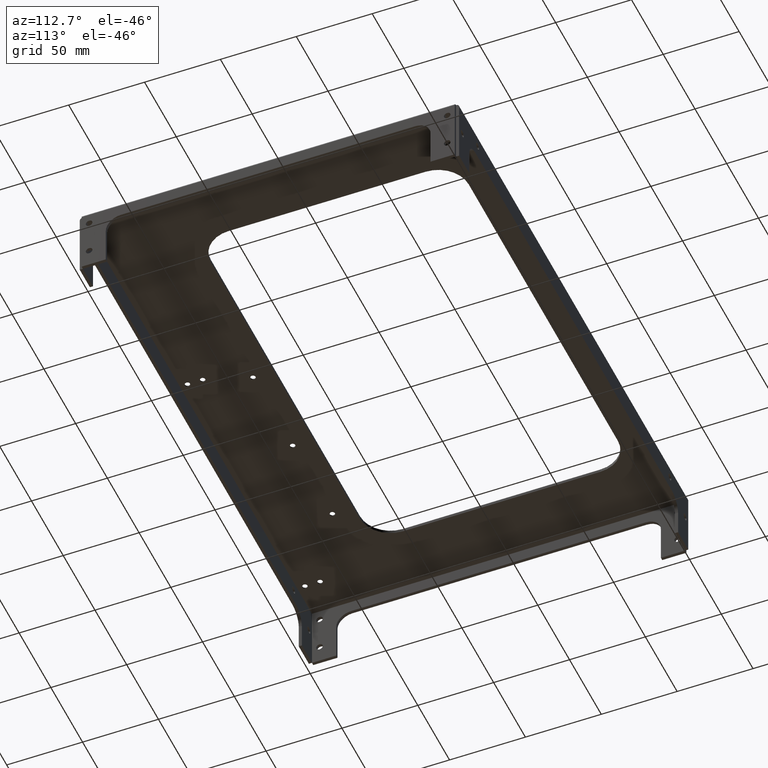
[diagram: clean part render]
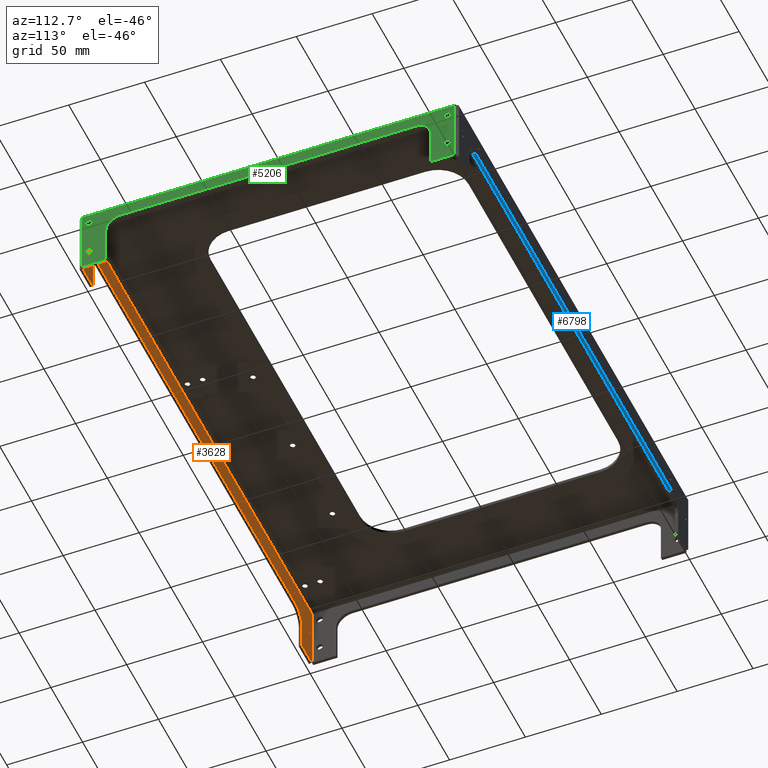
[diagram: same view with three faces highlighted in distinct colors, each labeled with its STEP entity id]
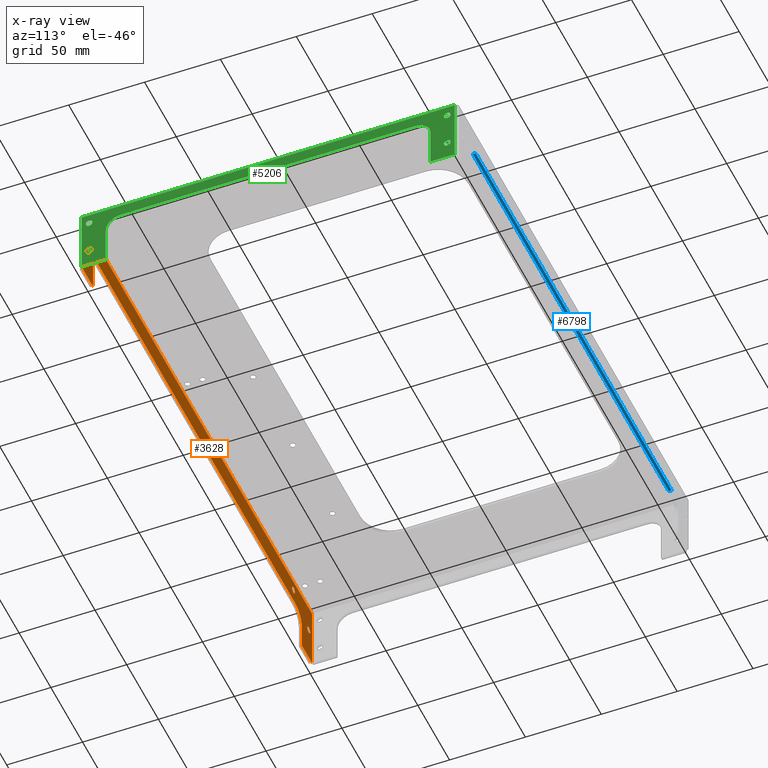
[diagram: x-ray of the same camera — body ghosted, the three highlighted faces saturated]
A machine part, auxiliary view with three faces highlighted in distinct colors.
The next image is the same camera in x-ray (body ghosted, the three faces saturated) — at least one of them is partly hidden behind the body in this view.
Their STEP definitions:

[orange] entity #3628 — the highlighted planar face has unit normal (0, 1, 0).
#850 = PLANE('',#851);
#851 = AXIS2_PLACEMENT_3D('',#852,#853,#854);
#852 = CARTESIAN_POINT('',(0.,0.,0.));
#853 = DIRECTION('',(0.,0.,-1.));
#854 = DIRECTION('',(-1.,0.,0.));
#1299 = VERTEX_POINT('',#1300);
#1300 = CARTESIAN_POINT('',(362.968,2.032,0.));
#1335 = PLANE('',#1336);
#1336 = AXIS2_PLACEMENT_3D('',#1337,#1338,#1339);
#1337 = CARTESIAN_POINT('',(362.968,0.,0.));
#1338 = DIRECTION('',(1.,0.,0.));
#1339 = DIRECTION('',(0.,1.,0.));
#1448 = PLANE('',#1449);
#1449 = AXIS2_PLACEMENT_3D('',#1450,#1451,#1452);
#1450 = CARTESIAN_POINT('',(365.,2.032,0.));
#1451 = DIRECTION('',(0.,1.,0.));
#1452 = DIRECTION('',(-1.,0.,0.));
#1513 = VERTEX_POINT('',#1514);
#1514 = CARTESIAN_POINT('',(2.032,2.032,0.));
#1549 = PLANE('',#1550);
#1550 = AXIS2_PLACEMENT_3D('',#1551,#1552,#1553);
#1551 = CARTESIAN_POINT('',(2.032,2.032,0.));
#1552 = DIRECTION('',(-1.,-0.,-0.));
#1553 = DIRECTION('',(0.,-1.,0.));
#1658 = PLANE('',#1659);
#1659 = AXIS2_PLACEMENT_3D('',#1660,#1661,#1662);
#1660 = CARTESIAN_POINT('',(2.032,2.032,0.));
#1661 = DIRECTION('',(0.,1.,0.));
#1662 = DIRECTION('',(-1.,0.,0.));
#2478 = EDGE_CURVE('',#1299,#1513,#2479,.T.);
#2479 = SURFACE_CURVE('',#2480,(#2484,#2491),.PCURVE_S1.);
#2480 = LINE('',#2481,#2482);
#2481 = CARTESIAN_POINT('',(362.968,2.032,0.));
#2482 = VECTOR('',#2483,1.);
#2483 = DIRECTION('',(-1.,0.,0.));
#2484 = PCURVE('',#850,#2485);
#2485 = DEFINITIONAL_REPRESENTATION('',(#2486),#2490);
#2486 = LINE('',#2487,#2488);
#2487 = CARTESIAN_POINT('',(-362.968,2.032));
#2488 = VECTOR('',#2489,1.);
#2489 = DIRECTION('',(1.,0.));
#2490 = ( GEOMETRIC_REPRESENTATION_CONTEXT(2) 
PARAMETRIC_REPRESENTATION_CONTEXT() REPRESENTATION_CONTEXT('2D SPACE',''
  ) );
#2491 = PCURVE('',#2492,#2497);
#2492 = PLANE('',#2493);
#2493 = AXIS2_PLACEMENT_3D('',#2494,#2495,#2496);
#2494 = CARTESIAN_POINT('',(362.968,2.032,0.));
#2495 = DIRECTION('',(0.,1.,0.));
#2496 = DIRECTION('',(-1.,0.,0.));
#2497 = DEFINITIONAL_REPRESENTATION('',(#2498),#2502);
#2498 = LINE('',#2499,#2500);
#2499 = CARTESIAN_POINT('',(0.,0.));
#2500 = VECTOR('',#2501,1.);
#2501 = DIRECTION('',(1.,0.));
#2502 = ( GEOMETRIC_REPRESENTATION_CONTEXT(2) 
PARAMETRIC_REPRESENTATION_CONTEXT() REPRESENTATION_CONTEXT('2D SPACE',''
  ) );
#2851 = VERTEX_POINT('',#2852);
#2852 = CARTESIAN_POINT('',(362.968,2.032,-42.968));
#2866 = PLANE('',#2867);
#2867 = AXIS2_PLACEMENT_3D('',#2868,#2869,#2870);
#2868 = CARTESIAN_POINT('',(2.032,0.,-42.968));
#2869 = DIRECTION('',(0.,0.,-1.));
#2870 = DIRECTION('',(-1.,0.,0.));
#2878 = EDGE_CURVE('',#1299,#2851,#2879,.T.);
#2879 = SURFACE_CURVE('',#2880,(#2884,#2891),.PCURVE_S1.);
#2880 = LINE('',#2881,#2882);
#2881 = CARTESIAN_POINT('',(362.968,2.032,0.));
#2882 = VECTOR('',#2883,1.);
#2883 = DIRECTION('',(0.,0.,-1.));
#2884 = PCURVE('',#1335,#2885);
#2885 = DEFINITIONAL_REPRESENTATION('',(#2886),#2890);
#2886 = LINE('',#2887,#2888);
#2887 = CARTESIAN_POINT('',(2.032,0.));
#2888 = VECTOR('',#2889,1.);
#2889 = DIRECTION('',(0.,-1.));
#2890 = ( GEOMETRIC_REPRESENTATION_CONTEXT(2) 
PARAMETRIC_REPRESENTATION_CONTEXT() REPRESENTATION_CONTEXT('2D SPACE',''
  ) );
#2891 = PCURVE('',#1448,#2892);
#2892 = DEFINITIONAL_REPRESENTATION('',(#2893),#2897);
#2893 = LINE('',#2894,#2895);
#2894 = CARTESIAN_POINT('',(2.032,0.));
#2895 = VECTOR('',#2896,1.);
#2896 = DIRECTION('',(0.,-1.));
#2897 = ( GEOMETRIC_REPRESENTATION_CONTEXT(2) 
PARAMETRIC_REPRESENTATION_CONTEXT() REPRESENTATION_CONTEXT('2D SPACE',''
  ) );
#2989 = EDGE_CURVE('',#1513,#2990,#2992,.T.);
#2990 = VERTEX_POINT('',#2991);
#2991 = CARTESIAN_POINT('',(2.032,2.032,-42.968));
#2992 = SURFACE_CURVE('',#2993,(#2997,#3004),.PCURVE_S1.);
#2993 = LINE('',#2994,#2995);
#2994 = CARTESIAN_POINT('',(2.032,2.032,0.));
#2995 = VECTOR('',#2996,1.);
#2996 = DIRECTION('',(0.,0.,-1.));
#2997 = PCURVE('',#1549,#2998);
#2998 = DEFINITIONAL_REPRESENTATION('',(#2999),#3003);
#2999 = LINE('',#3000,#3001);
#3000 = CARTESIAN_POINT('',(-5.33E-15,0.));
#3001 = VECTOR('',#3002,1.);
#3002 = DIRECTION('',(0.,-1.));
#3003 = ( GEOMETRIC_REPRESENTATION_CONTEXT(2) 
PARAMETRIC_REPRESENTATION_CONTEXT() REPRESENTATION_CONTEXT('2D SPACE',''
  ) );
#3004 = PCURVE('',#1658,#3005);
#3005 = DEFINITIONAL_REPRESENTATION('',(#3006),#3010);
#3006 = LINE('',#3007,#3008);
#3007 = CARTESIAN_POINT('',(0.,0.));
#3008 = VECTOR('',#3009,1.);
#3009 = DIRECTION('',(0.,-1.));
#3010 = ( GEOMETRIC_REPRESENTATION_CONTEXT(2) 
PARAMETRIC_REPRESENTATION_CONTEXT() REPRESENTATION_CONTEXT('2D SPACE',''
  ) );
#3028 = PLANE('',#3029);
#3029 = AXIS2_PLACEMENT_3D('',#3030,#3031,#3032);
#3030 = CARTESIAN_POINT('',(2.032,0.,-42.968));
#3031 = DIRECTION('',(0.,0.,-1.));
#3032 = DIRECTION('',(-1.,0.,0.));
#3628 = ADVANCED_FACE('',(#3629,#3814,#3845,#3876,#3907),#2492,.T.);
#3629 = FACE_BOUND('',#3630,.T.);
#3630 = EDGE_LOOP('',(#3631,#3632,#3633,#3656,#3682,#3711,#3737,#3766,
    #3792,#3813));
#3631 = ORIENTED_EDGE('',*,*,#2478,.F.);
#3632 = ORIENTED_EDGE('',*,*,#2878,.T.);
#3633 = ORIENTED_EDGE('',*,*,#3634,.T.);
#3634 = EDGE_CURVE('',#2851,#3635,#3637,.T.);
#3635 = VERTEX_POINT('',#3636);
#3636 = CARTESIAN_POINT('',(347.,2.032,-42.968));
#3637 = SURFACE_CURVE('',#3638,(#3642,#3649),.PCURVE_S1.);
#3638 = LINE('',#3639,#3640);
#3639 = CARTESIAN_POINT('',(362.968,2.032,-42.968));
#3640 = VECTOR('',#3641,1.);
#3641 = DIRECTION('',(-1.,0.,0.));
#3642 = PCURVE('',#2492,#3643);
#3643 = DEFINITIONAL_REPRESENTATION('',(#3644),#3648);
#3644 = LINE('',#3645,#3646);
#3645 = CARTESIAN_POINT('',(0.,-42.968));
#3646 = VECTOR('',#3647,1.);
#3647 = DIRECTION('',(1.,0.));
#3648 = ( GEOMETRIC_REPRESENTATION_CONTEXT(2) 
PARAMETRIC_REPRESENTATION_CONTEXT() REPRESENTATION_CONTEXT('2D SPACE',''
  ) );
#3649 = PCURVE('',#2866,#3650);
#3650 = DEFINITIONAL_REPRESENTATION('',(#3651),#3655);
#3651 = LINE('',#3652,#3653);
#3652 = CARTESIAN_POINT('',(-360.936,2.032));
#3653 = VECTOR('',#3654,1.);
#3654 = DIRECTION('',(1.,0.));
#3655 = ( GEOMETRIC_REPRESENTATION_CONTEXT(2) 
PARAMETRIC_REPRESENTATION_CONTEXT() REPRESENTATION_CONTEXT('2D SPACE',''
  ) );
#3656 = ORIENTED_EDGE('',*,*,#3657,.F.);
#3657 = EDGE_CURVE('',#3658,#3635,#3660,.T.);
#3658 = VERTEX_POINT('',#3659);
#3659 = CARTESIAN_POINT('',(347.,2.032,-25.968));
#3660 = SURFACE_CURVE('',#3661,(#3665,#3671),.PCURVE_S1.);
#3661 = LINE('',#3662,#3663);
#3662 = CARTESIAN_POINT('',(347.,2.032,-12.984));
#3663 = VECTOR('',#3664,1.);
#3664 = DIRECTION('',(0.,0.,-1.));
#3665 = PCURVE('',#2492,#3666);
#3666 = DEFINITIONAL_REPRESENTATION('',(#3667),#3670);
#3667 = B_SPLINE_CURVE_WITH_KNOTS('',1,(#3668,#3669),.UNSPECIFIED.,.F.,
  .F.,(2,2),(10.5808,34.2808),.PIECEWISE_BEZIER_KNOTS.);
#3668 = CARTESIAN_POINT('',(15.968,-23.5648));
#3669 = CARTESIAN_POINT('',(15.968,-47.2648));
#3670 = ( GEOMETRIC_REPRESENTATION_CONTEXT(2) 
PARAMETRIC_REPRESENTATION_CONTEXT() REPRESENTATION_CONTEXT('2D SPACE',''
  ) );
#3671 = PCURVE('',#3672,#3677);
#3672 = PLANE('',#3673);
#3673 = AXIS2_PLACEMENT_3D('',#3674,#3675,#3676);
#3674 = CARTESIAN_POINT('',(347.,250.,-25.968));
#3675 = DIRECTION('',(1.,0.,0.));
#3676 = DIRECTION('',(0.,-2.2E-16,-1.));
#3677 = DEFINITIONAL_REPRESENTATION('',(#3678),#3681);
#3678 = B_SPLINE_CURVE_WITH_KNOTS('',1,(#3679,#3680),.UNSPECIFIED.,.F.,
  .F.,(2,2),(10.5808,34.2808),.PIECEWISE_BEZIER_KNOTS.);
#3679 = CARTESIAN_POINT('',(-2.4032,-247.968));
#3680 = CARTESIAN_POINT('',(21.2968,-247.968));
#3681 = ( GEOMETRIC_REPRESENTATION_CONTEXT(2) 
PARAMETRIC_REPRESENTATION_CONTEXT() REPRESENTATION_CONTEXT('2D SPACE',''
  ) );
#3682 = ORIENTED_EDGE('',*,*,#3683,.F.);
#3683 = EDGE_CURVE('',#3684,#3658,#3686,.T.);
#3684 = VERTEX_POINT('',#3685);
#3685 = CARTESIAN_POINT('',(337.,2.032,-15.968));
#3686 = SURFACE_CURVE('',#3687,(#3692,#3699),.PCURVE_S1.);
#3687 = CIRCLE('',#3688,10.);
#3688 = AXIS2_PLACEMENT_3D('',#3689,#3690,#3691);
#3689 = CARTESIAN_POINT('',(337.,2.032,-25.968));
#3690 = DIRECTION('',(0.,1.,-2.2E-16));
#3691 = DIRECTION('',(-1.,0.,0.));
#3692 = PCURVE('',#2492,#3693);
#3693 = DEFINITIONAL_REPRESENTATION('',(#3694),#3698);
#3694 = CIRCLE('',#3695,10.);
#3695 = AXIS2_PLACEMENT_2D('',#3696,#3697);
#3696 = CARTESIAN_POINT('',(25.968,-25.968));
#3697 = DIRECTION('',(1.,0.));
#3698 = ( GEOMETRIC_REPRESENTATION_CONTEXT(2) 
PARAMETRIC_REPRESENTATION_CONTEXT() REPRESENTATION_CONTEXT('2D SPACE',''
  ) );
#3699 = PCURVE('',#3700,#3705);
#3700 = CYLINDRICAL_SURFACE('',#3701,10.);
#3701 = AXIS2_PLACEMENT_3D('',#3702,#3703,#3704);
#3702 = CARTESIAN_POINT('',(337.,250.,-25.968));
#3703 = DIRECTION('',(0.,1.,-2.2E-16));
#3704 = DIRECTION('',(-1.,0.,0.));
#3705 = DEFINITIONAL_REPRESENTATION('',(#3706),#3710);
#3706 = LINE('',#3707,#3708);
#3707 = CARTESIAN_POINT('',(0.,-247.968));
#3708 = VECTOR('',#3709,1.);
#3709 = DIRECTION('',(1.,0.));
#3710 = ( GEOMETRIC_REPRESENTATION_CONTEXT(2) 
PARAMETRIC_REPRESENTATION_CONTEXT() REPRESENTATION_CONTEXT('2D SPACE',''
  ) );
#3711 = ORIENTED_EDGE('',*,*,#3712,.F.);
#3712 = EDGE_CURVE('',#3713,#3684,#3715,.T.);
#3713 = VERTEX_POINT('',#3714);
#3714 = CARTESIAN_POINT('',(28.,2.032,-15.968));
#3715 = SURFACE_CURVE('',#3716,(#3720,#3726),.PCURVE_S1.);
#3716 = LINE('',#3717,#3718);
#3717 = CARTESIAN_POINT('',(195.484,2.032,-15.968));
#3718 = VECTOR('',#3719,1.);
#3719 = DIRECTION('',(1.,0.,0.));
#3720 = PCURVE('',#2492,#3721);
#3721 = DEFINITIONAL_REPRESENTATION('',(#3722),#3725);
#3722 = B_SPLINE_CURVE_WITH_KNOTS('',1,(#3723,#3724),.UNSPECIFIED.,.F.,
  .F.,(2,2),(-198.384,172.416),.PIECEWISE_BEZIER_KNOTS.);
#3723 = CARTESIAN_POINT('',(365.868,-15.968));
#3724 = CARTESIAN_POINT('',(-4.932,-15.968));
#3725 = ( GEOMETRIC_REPRESENTATION_CONTEXT(2) 
PARAMETRIC_REPRESENTATION_CONTEXT() REPRESENTATION_CONTEXT('2D SPACE',''
  ) );
#3726 = PCURVE('',#3727,#3732);
#3727 = PLANE('',#3728);
#3728 = AXIS2_PLACEMENT_3D('',#3729,#3730,#3731);
#3729 = CARTESIAN_POINT('',(28.,250.,-15.968));
#3730 = DIRECTION('',(0.,2.2E-16,1.));
#3731 = DIRECTION('',(1.,0.,0.));
#3732 = DEFINITIONAL_REPRESENTATION('',(#3733),#3736);
#3733 = B_SPLINE_CURVE_WITH_KNOTS('',1,(#3734,#3735),.UNSPECIFIED.,.F.,
  .F.,(2,2),(-198.384,172.416),.PIECEWISE_BEZIER_KNOTS.);
#3734 = CARTESIAN_POINT('',(-30.9,-247.968));
#3735 = CARTESIAN_POINT('',(339.9,-247.968));
#3736 = ( GEOMETRIC_REPRESENTATION_CONTEXT(2) 
PARAMETRIC_REPRESENTATION_CONTEXT() REPRESENTATION_CONTEXT('2D SPACE',''
  ) );
#3737 = ORIENTED_EDGE('',*,*,#3738,.F.);
#3738 = EDGE_CURVE('',#3739,#3713,#3741,.T.);
#3739 = VERTEX_POINT('',#3740);
#3740 = CARTESIAN_POINT('',(18.,2.032,-25.968));
#3741 = SURFACE_CURVE('',#3742,(#3747,#3754),.PCURVE_S1.);
#3742 = CIRCLE('',#3743,10.);
#3743 = AXIS2_PLACEMENT_3D('',#3744,#3745,#3746);
#3744 = CARTESIAN_POINT('',(28.,2.032,-25.968));
#3745 = DIRECTION('',(0.,1.,-2.2E-16));
#3746 = DIRECTION('',(-1.,0.,0.));
#3747 = PCURVE('',#2492,#3748);
#3748 = DEFINITIONAL_REPRESENTATION('',(#3749),#3753);
#3749 = CIRCLE('',#3750,10.);
#3750 = AXIS2_PLACEMENT_2D('',#3751,#3752);
#3751 = CARTESIAN_POINT('',(334.968,-25.968));
#3752 = DIRECTION('',(1.,0.));
#3753 = ( GEOMETRIC_REPRESENTATION_CONTEXT(2) 
PARAMETRIC_REPRESENTATION_CONTEXT() REPRESENTATION_CONTEXT('2D SPACE',''
  ) );
#3754 = PCURVE('',#3755,#3760);
#3755 = CYLINDRICAL_SURFACE('',#3756,10.);
#3756 = AXIS2_PLACEMENT_3D('',#3757,#3758,#3759);
#3757 = CARTESIAN_POINT('',(28.,250.,-25.968));
#3758 = DIRECTION('',(0.,1.,-2.2E-16));
#3759 = DIRECTION('',(-1.,0.,0.));
#3760 = DEFINITIONAL_REPRESENTATION('',(#3761),#3765);
#3761 = LINE('',#3762,#3763);
#3762 = CARTESIAN_POINT('',(0.,-247.968));
#3763 = VECTOR('',#3764,1.);
#3764 = DIRECTION('',(1.,0.));
#3765 = ( GEOMETRIC_REPRESENTATION_CONTEXT(2) 
PARAMETRIC_REPRESENTATION_CONTEXT() REPRESENTATION_CONTEXT('2D SPACE',''
  ) );
#3766 = ORIENTED_EDGE('',*,*,#3767,.F.);
#3767 = EDGE_CURVE('',#3768,#3739,#3770,.T.);
#3768 = VERTEX_POINT('',#3769);
#3769 = CARTESIAN_POINT('',(18.,2.032,-42.968));
#3770 = SURFACE_CURVE('',#3771,(#3775,#3781),.PCURVE_S1.);
#3771 = LINE('',#3772,#3773);
#3772 = CARTESIAN_POINT('',(18.,2.032,-25.));
#3773 = VECTOR('',#3774,1.);
#3774 = DIRECTION('',(0.,0.,1.));
#3775 = PCURVE('',#2492,#3776);
#3776 = DEFINITIONAL_REPRESENTATION('',(#3777),#3780);
#3777 = B_SPLINE_CURVE_WITH_KNOTS('',1,(#3778,#3779),.UNSPECIFIED.,.F.,
  .F.,(2,2),(-22.2648,1.4352),.PIECEWISE_BEZIER_KNOTS.);
#3778 = CARTESIAN_POINT('',(344.968,-47.2648));
#3779 = CARTESIAN_POINT('',(344.968,-23.5648));
#3780 = ( GEOMETRIC_REPRESENTATION_CONTEXT(2) 
PARAMETRIC_REPRESENTATION_CONTEXT() REPRESENTATION_CONTEXT('2D SPACE',''
  ) );
#3781 = PCURVE('',#3782,#3787);
#3782 = PLANE('',#3783);
#3783 = AXIS2_PLACEMENT_3D('',#3784,#3785,#3786);
#3784 = CARTESIAN_POINT('',(18.,250.,-50.));
#3785 = DIRECTION('',(-1.,0.,0.));
#3786 = DIRECTION('',(0.,2.2E-16,1.));
#3787 = DEFINITIONAL_REPRESENTATION('',(#3788),#3791);
#3788 = B_SPLINE_CURVE_WITH_KNOTS('',1,(#3789,#3790),.UNSPECIFIED.,.F.,
  .F.,(2,2),(-22.2648,1.4352),.PIECEWISE_BEZIER_KNOTS.);
#3789 = CARTESIAN_POINT('',(2.7352,-247.968));
#3790 = CARTESIAN_POINT('',(26.4352,-247.968));
#3791 = ( GEOMETRIC_REPRESENTATION_CONTEXT(2) 
PARAMETRIC_REPRESENTATION_CONTEXT() REPRESENTATION_CONTEXT('2D SPACE',''
  ) );
#3792 = ORIENTED_EDGE('',*,*,#3793,.T.);
#3793 = EDGE_CURVE('',#3768,#2990,#3794,.T.);
#3794 = SURFACE_CURVE('',#3795,(#3799,#3806),.PCURVE_S1.);
#3795 = LINE('',#3796,#3797);
#3796 = CARTESIAN_POINT('',(362.968,2.032,-42.968));
#3797 = VECTOR('',#3798,1.);
#3798 = DIRECTION('',(-1.,0.,0.));
#3799 = PCURVE('',#2492,#3800);
#3800 = DEFINITIONAL_REPRESENTATION('',(#3801),#3805);
#3801 = LINE('',#3802,#3803);
#3802 = CARTESIAN_POINT('',(0.,-42.968));
#3803 = VECTOR('',#3804,1.);
#3804 = DIRECTION('',(1.,0.));
#3805 = ( GEOMETRIC_REPRESENTATION_CONTEXT(2) 
PARAMETRIC_REPRESENTATION_CONTEXT() REPRESENTATION_CONTEXT('2D SPACE',''
  ) );
#3806 = PCURVE('',#3028,#3807);
#3807 = DEFINITIONAL_REPRESENTATION('',(#3808),#3812);
#3808 = LINE('',#3809,#3810);
#3809 = CARTESIAN_POINT('',(-360.936,2.032));
#3810 = VECTOR('',#3811,1.);
#3811 = DIRECTION('',(1.,0.));
#3812 = ( GEOMETRIC_REPRESENTATION_CONTEXT(2) 
PARAMETRIC_REPRESENTATION_CONTEXT() REPRESENTATION_CONTEXT('2D SPACE',''
  ) );
#3813 = ORIENTED_EDGE('',*,*,#2989,.F.);
#3814 = FACE_BOUND('',#3815,.T.);
#3815 = EDGE_LOOP('',(#3816));
#3816 = ORIENTED_EDGE('',*,*,#3817,.F.);
#3817 = EDGE_CURVE('',#3818,#3818,#3820,.T.);
#3818 = VERTEX_POINT('',#3819);
#3819 = CARTESIAN_POINT('',(331.805,2.032,-6.968));
#3820 = SURFACE_CURVE('',#3821,(#3826,#3833),.PCURVE_S1.);
#3821 = CIRCLE('',#3822,2.195);
#3822 = AXIS2_PLACEMENT_3D('',#3823,#3824,#3825);
#3823 = CARTESIAN_POINT('',(334.,2.032,-6.968));
#3824 = DIRECTION('',(0.,1.,-2.2E-16));
#3825 = DIRECTION('',(-1.,0.,0.));
#3826 = PCURVE('',#2492,#3827);
#3827 = DEFINITIONAL_REPRESENTATION('',(#3828),#3832);
#3828 = CIRCLE('',#3829,2.195);
#3829 = AXIS2_PLACEMENT_2D('',#3830,#3831);
#3830 = CARTESIAN_POINT('',(28.968,-6.968));
#3831 = DIRECTION('',(1.,0.));
#3832 = ( GEOMETRIC_REPRESENTATION_CONTEXT(2) 
PARAMETRIC_REPRESENTATION_CONTEXT() REPRESENTATION_CONTEXT('2D SPACE',''
  ) );
#3833 = PCURVE('',#3834,#3839);
#3834 = CYLINDRICAL_SURFACE('',#3835,2.195);
#3835 = AXIS2_PLACEMENT_3D('',#3836,#3837,#3838);
#3836 = CARTESIAN_POINT('',(334.,250.,-6.968));
#3837 = DIRECTION('',(0.,1.,-2.2E-16));
#3838 = DIRECTION('',(-1.,0.,0.));
#3839 = DEFINITIONAL_REPRESENTATION('',(#3840),#3844);
#3840 = LINE('',#3841,#3842);
#3841 = CARTESIAN_POINT('',(0.,-247.968));
#3842 = VECTOR('',#3843,1.);
#3843 = DIRECTION('',(1.,0.));
#3844 = ( GEOMETRIC_REPRESENTATION_CONTEXT(2) 
PARAMETRIC_REPRESENTATION_CONTEXT() REPRESENTATION_CONTEXT('2D SPACE',''
  ) );
#3845 = FACE_BOUND('',#3846,.T.);
#3846 = EDGE_LOOP('',(#3847));
#3847 = ORIENTED_EDGE('',*,*,#3848,.F.);
#3848 = EDGE_CURVE('',#3849,#3849,#3851,.T.);
#3849 = VERTEX_POINT('',#3850);
#3850 = CARTESIAN_POINT('',(355.805,2.032,-18.968));
#3851 = SURFACE_CURVE('',#3852,(#3857,#3864),.PCURVE_S1.);
#3852 = CIRCLE('',#3853,2.195);
#3853 = AXIS2_PLACEMENT_3D('',#3854,#3855,#3856);
#3854 = CARTESIAN_POINT('',(358.,2.032,-18.968));
#3855 = DIRECTION('',(0.,1.,-2.2E-16));
#3856 = DIRECTION('',(-1.,0.,0.));
#3857 = PCURVE('',#2492,#3858);
#3858 = DEFINITIONAL_REPRESENTATION('',(#3859),#3863);
#3859 = CIRCLE('',#3860,2.195);
#3860 = AXIS2_PLACEMENT_2D('',#3861,#3862);
#3861 = CARTESIAN_POINT('',(4.968,-18.968));
#3862 = DIRECTION('',(1.,0.));
#3863 = ( GEOMETRIC_REPRESENTATION_CONTEXT(2) 
PARAMETRIC_REPRESENTATION_CONTEXT() REPRESENTATION_CONTEXT('2D SPACE',''
  ) );
#3864 = PCURVE('',#3865,#3870);
#3865 = CYLINDRICAL_SURFACE('',#3866,2.195);
#3866 = AXIS2_PLACEMENT_3D('',#3867,#3868,#3869);
#3867 = CARTESIAN_POINT('',(358.,250.,-18.968));
#3868 = DIRECTION('',(0.,1.,-2.2E-16));
#3869 = DIRECTION('',(-1.,0.,0.));
#3870 = DEFINITIONAL_REPRESENTATION('',(#3871),#3875);
#3871 = LINE('',#3872,#3873);
#3872 = CARTESIAN_POINT('',(0.,-247.968));
#3873 = VECTOR('',#3874,1.);
#3874 = DIRECTION('',(1.,0.));
#3875 = ( GEOMETRIC_REPRESENTATION_CONTEXT(2) 
PARAMETRIC_REPRESENTATION_CONTEXT() REPRESENTATION_CONTEXT('2D SPACE',''
  ) );
#3876 = FACE_BOUND('',#3877,.T.);
#3877 = EDGE_LOOP('',(#3878));
#3878 = ORIENTED_EDGE('',*,*,#3879,.F.);
#3879 = EDGE_CURVE('',#3880,#3880,#3882,.T.);
#3880 = VERTEX_POINT('',#3881);
#3881 = CARTESIAN_POINT('',(4.805,2.032,-18.968));
#3882 = SURFACE_CURVE('',#3883,(#3888,#3895),.PCURVE_S1.);
#3883 = CIRCLE('',#3884,2.195);
#3884 = AXIS2_PLACEMENT_3D('',#3885,#3886,#3887);
#3885 = CARTESIAN_POINT('',(7.,2.032,-18.968));
#3886 = DIRECTION('',(0.,1.,-2.2E-16));
#3887 = DIRECTION('',(-1.,0.,0.));
#3888 = PCURVE('',#2492,#3889);
#3889 = DEFINITIONAL_REPRESENTATION('',(#3890),#3894);
#3890 = CIRCLE('',#3891,2.195);
#3891 = AXIS2_PLACEMENT_2D('',#3892,#3893);
#3892 = CARTESIAN_POINT('',(355.968,-18.968));
#3893 = DIRECTION('',(1.,0.));
#3894 = ( GEOMETRIC_REPRESENTATION_CONTEXT(2) 
PARAMETRIC_REPRESENTATION_CONTEXT() REPRESENTATION_CONTEXT('2D SPACE',''
  ) );
#3895 = PCURVE('',#3896,#3901);
#3896 = CYLINDRICAL_SURFACE('',#3897,2.195);
#3897 = AXIS2_PLACEMENT_3D('',#3898,#3899,#3900);
#3898 = CARTESIAN_POINT('',(7.,250.,-18.968));
#3899 = DIRECTION('',(0.,1.,-2.2E-16));
#3900 = DIRECTION('',(-1.,0.,0.));
#3901 = DEFINITIONAL_REPRESENTATION('',(#3902),#3906);
#3902 = LINE('',#3903,#3904);
#3903 = CARTESIAN_POINT('',(0.,-247.968));
#3904 = VECTOR('',#3905,1.);
#3905 = DIRECTION('',(1.,0.));
#3906 = ( GEOMETRIC_REPRESENTATION_CONTEXT(2) 
PARAMETRIC_REPRESENTATION_CONTEXT() REPRESENTATION_CONTEXT('2D SPACE',''
  ) );
#3907 = FACE_BOUND('',#3908,.T.);
#3908 = EDGE_LOOP('',(#3909));
#3909 = ORIENTED_EDGE('',*,*,#3910,.F.);
#3910 = EDGE_CURVE('',#3911,#3911,#3913,.T.);
#3911 = VERTEX_POINT('',#3912);
#3912 = CARTESIAN_POINT('',(28.805,2.032,-6.968));
#3913 = SURFACE_CURVE('',#3914,(#3919,#3926),.PCURVE_S1.);
#3914 = CIRCLE('',#3915,2.195);
#3915 = AXIS2_PLACEMENT_3D('',#3916,#3917,#3918);
#3916 = CARTESIAN_POINT('',(31.,2.032,-6.968));
#3917 = DIRECTION('',(0.,1.,-2.2E-16));
#3918 = DIRECTION('',(-1.,0.,0.));
#3919 = PCURVE('',#2492,#3920);
#3920 = DEFINITIONAL_REPRESENTATION('',(#3921),#3925);
#3921 = CIRCLE('',#3922,2.195);
#3922 = AXIS2_PLACEMENT_2D('',#3923,#3924);
#3923 = CARTESIAN_POINT('',(331.968,-6.968));
#3924 = DIRECTION('',(1.,0.));
#3925 = ( GEOMETRIC_REPRESENTATION_CONTEXT(2) 
PARAMETRIC_REPRESENTATION_CONTEXT() REPRESENTATION_CONTEXT('2D SPACE',''
  ) );
#3926 = PCURVE('',#3927,#3932);
#3927 = CYLINDRICAL_SURFACE('',#3928,2.195);
#3928 = AXIS2_PLACEMENT_3D('',#3929,#3930,#3931);
#3929 = CARTESIAN_POINT('',(31.,250.,-6.968));
#3930 = DIRECTION('',(0.,1.,-2.2E-16));
#3931 = DIRECTION('',(-1.,0.,0.));
#3932 = DEFINITIONAL_REPRESENTATION('',(#3933),#3937);
#3933 = LINE('',#3934,#3935);
#3934 = CARTESIAN_POINT('',(0.,-247.968));
#3935 = VECTOR('',#3936,1.);
#3936 = DIRECTION('',(1.,0.));
#3937 = ( GEOMETRIC_REPRESENTATION_CONTEXT(2) 
PARAMETRIC_REPRESENTATION_CONTEXT() REPRESENTATION_CONTEXT('2D SPACE',''
  ) );

[blue] entity #6798 — the highlighted planar face has unit normal (0, 0, 1).
#2544 = PLANE('',#2545);
#2545 = AXIS2_PLACEMENT_3D('',#2546,#2547,#2548);
#2546 = CARTESIAN_POINT('',(362.968,247.968,0.));
#2547 = DIRECTION('',(0.,1.,0.));
#2548 = DIRECTION('',(-1.,0.,0.));
#3242 = PLANE('',#3243);
#3243 = AXIS2_PLACEMENT_3D('',#3244,#3245,#3246);
#3244 = CARTESIAN_POINT('',(2.032,250.,0.));
#3245 = DIRECTION('',(0.,-1.,0.));
#3246 = DIRECTION('',(1.,0.,0.));
#4320 = VERTEX_POINT('',#4321);
#4321 = CARTESIAN_POINT('',(337.,247.968,-15.968));
#4336 = CYLINDRICAL_SURFACE('',#4337,10.);
#4337 = AXIS2_PLACEMENT_3D('',#4338,#4339,#4340);
#4338 = CARTESIAN_POINT('',(337.,250.,-25.968));
#4339 = DIRECTION('',(0.,1.,-2.2E-16));
#4340 = DIRECTION('',(-1.,0.,0.));
#4348 = EDGE_CURVE('',#4349,#4320,#4351,.T.);
#4349 = VERTEX_POINT('',#4350);
#4350 = CARTESIAN_POINT('',(28.,247.968,-15.968));
#4351 = SURFACE_CURVE('',#4352,(#4356,#4362),.PCURVE_S1.);
#4352 = LINE('',#4353,#4354);
#4353 = CARTESIAN_POINT('',(195.484,247.968,-15.968));
#4354 = VECTOR('',#4355,1.);
#4355 = DIRECTION('',(1.,0.,0.));
#4356 = PCURVE('',#2544,#4357);
#4357 = DEFINITIONAL_REPRESENTATION('',(#4358),#4361);
#4358 = B_SPLINE_CURVE_WITH_KNOTS('',1,(#4359,#4360),.UNSPECIFIED.,.F.,
  .F.,(2,2),(-198.384,172.416),.PIECEWISE_BEZIER_KNOTS.);
#4359 = CARTESIAN_POINT('',(365.868,-15.968));
#4360 = CARTESIAN_POINT('',(-4.932,-15.968));
#4361 = ( GEOMETRIC_REPRESENTATION_CONTEXT(2) 
PARAMETRIC_REPRESENTATION_CONTEXT() REPRESENTATION_CONTEXT('2D SPACE',''
  ) );
#4362 = PCURVE('',#4363,#4368);
#4363 = PLANE('',#4364);
#4364 = AXIS2_PLACEMENT_3D('',#4365,#4366,#4367);
#4365 = CARTESIAN_POINT('',(28.,250.,-15.968));
#4366 = DIRECTION('',(0.,2.2E-16,1.));
#4367 = DIRECTION('',(1.,0.,0.));
#4368 = DEFINITIONAL_REPRESENTATION('',(#4369),#4372);
#4369 = B_SPLINE_CURVE_WITH_KNOTS('',1,(#4370,#4371),.UNSPECIFIED.,.F.,
  .F.,(2,2),(-198.384,172.416),.PIECEWISE_BEZIER_KNOTS.);
#4370 = CARTESIAN_POINT('',(-30.9,-2.032));
#4371 = CARTESIAN_POINT('',(339.9,-2.032));
#4372 = ( GEOMETRIC_REPRESENTATION_CONTEXT(2) 
PARAMETRIC_REPRESENTATION_CONTEXT() REPRESENTATION_CONTEXT('2D SPACE',''
  ) );
#4391 = CYLINDRICAL_SURFACE('',#4392,10.);
#4392 = AXIS2_PLACEMENT_3D('',#4393,#4394,#4395);
#4393 = CARTESIAN_POINT('',(28.,250.,-25.968));
#4394 = DIRECTION('',(0.,1.,-2.2E-16));
#4395 = DIRECTION('',(-1.,0.,0.));
#5925 = VERTEX_POINT('',#5926);
#5926 = CARTESIAN_POINT('',(28.,250.,-15.968));
#5952 = EDGE_CURVE('',#5925,#5953,#5955,.T.);
#5953 = VERTEX_POINT('',#5954);
#5954 = CARTESIAN_POINT('',(337.,250.,-15.968));
#5955 = SURFACE_CURVE('',#5956,(#5960,#5967),.PCURVE_S1.);
#5956 = LINE('',#5957,#5958);
#5957 = CARTESIAN_POINT('',(28.,250.,-15.968));
#5958 = VECTOR('',#5959,1.);
#5959 = DIRECTION('',(1.,0.,0.));
#5960 = PCURVE('',#3242,#5961);
#5961 = DEFINITIONAL_REPRESENTATION('',(#5962),#5966);
#5962 = LINE('',#5963,#5964);
#5963 = CARTESIAN_POINT('',(25.968,-15.968));
#5964 = VECTOR('',#5965,1.);
#5965 = DIRECTION('',(1.,0.));
#5966 = ( GEOMETRIC_REPRESENTATION_CONTEXT(2) 
PARAMETRIC_REPRESENTATION_CONTEXT() REPRESENTATION_CONTEXT('2D SPACE',''
  ) );
#5967 = PCURVE('',#4363,#5968);
#5968 = DEFINITIONAL_REPRESENTATION('',(#5969),#5973);
#5969 = LINE('',#5970,#5971);
#5970 = CARTESIAN_POINT('',(0.,0.));
#5971 = VECTOR('',#5972,1.);
#5972 = DIRECTION('',(1.,0.));
#5973 = ( GEOMETRIC_REPRESENTATION_CONTEXT(2) 
PARAMETRIC_REPRESENTATION_CONTEXT() REPRESENTATION_CONTEXT('2D SPACE',''
  ) );
#6749 = EDGE_CURVE('',#5953,#4320,#6750,.T.);
#6750 = SURFACE_CURVE('',#6751,(#6755,#6762),.PCURVE_S1.);
#6751 = LINE('',#6752,#6753);
#6752 = CARTESIAN_POINT('',(337.,250.,-15.968));
#6753 = VECTOR('',#6754,1.);
#6754 = DIRECTION('',(0.,-1.,2.2E-16));
#6755 = PCURVE('',#4336,#6756);
#6756 = DEFINITIONAL_REPRESENTATION('',(#6757),#6761);
#6757 = LINE('',#6758,#6759);
#6758 = CARTESIAN_POINT('',(1.570796326795,0.));
#6759 = VECTOR('',#6760,1.);
#6760 = DIRECTION('',(0.,-1.));
#6761 = ( GEOMETRIC_REPRESENTATION_CONTEXT(2) 
PARAMETRIC_REPRESENTATION_CONTEXT() REPRESENTATION_CONTEXT('2D SPACE',''
  ) );
#6762 = PCURVE('',#4363,#6763);
#6763 = DEFINITIONAL_REPRESENTATION('',(#6764),#6768);
#6764 = LINE('',#6765,#6766);
#6765 = CARTESIAN_POINT('',(309.,0.));
#6766 = VECTOR('',#6767,1.);
#6767 = DIRECTION('',(0.,-1.));
#6768 = ( GEOMETRIC_REPRESENTATION_CONTEXT(2) 
PARAMETRIC_REPRESENTATION_CONTEXT() REPRESENTATION_CONTEXT('2D SPACE',''
  ) );
#6778 = EDGE_CURVE('',#5925,#4349,#6779,.T.);
#6779 = SURFACE_CURVE('',#6780,(#6784,#6791),.PCURVE_S1.);
#6780 = LINE('',#6781,#6782);
#6781 = CARTESIAN_POINT('',(28.,250.,-15.968));
#6782 = VECTOR('',#6783,1.);
#6783 = DIRECTION('',(0.,-1.,2.2E-16));
#6784 = PCURVE('',#4391,#6785);
#6785 = DEFINITIONAL_REPRESENTATION('',(#6786),#6790);
#6786 = LINE('',#6787,#6788);
#6787 = CARTESIAN_POINT('',(1.570796326795,0.));
#6788 = VECTOR('',#6789,1.);
#6789 = DIRECTION('',(0.,-1.));
#6790 = ( GEOMETRIC_REPRESENTATION_CONTEXT(2) 
PARAMETRIC_REPRESENTATION_CONTEXT() REPRESENTATION_CONTEXT('2D SPACE',''
  ) );
#6791 = PCURVE('',#4363,#6792);
#6792 = DEFINITIONAL_REPRESENTATION('',(#6793),#6797);
#6793 = LINE('',#6794,#6795);
#6794 = CARTESIAN_POINT('',(0.,0.));
#6795 = VECTOR('',#6796,1.);
#6796 = DIRECTION('',(0.,-1.));
#6797 = ( GEOMETRIC_REPRESENTATION_CONTEXT(2) 
PARAMETRIC_REPRESENTATION_CONTEXT() REPRESENTATION_CONTEXT('2D SPACE',''
  ) );
#6798 = ADVANCED_FACE('',(#6799),#4363,.F.);
#6799 = FACE_BOUND('',#6800,.F.);
#6800 = EDGE_LOOP('',(#6801,#6802,#6803,#6804));
#6801 = ORIENTED_EDGE('',*,*,#5952,.F.);
#6802 = ORIENTED_EDGE('',*,*,#6778,.T.);
#6803 = ORIENTED_EDGE('',*,*,#4348,.T.);
#6804 = ORIENTED_EDGE('',*,*,#6749,.F.);

[green] entity #5206 — the highlighted planar face has unit normal (-1, -0, -0).
#1405 = VERTEX_POINT('',#1406);
#1406 = CARTESIAN_POINT('',(365.,2.032,0.));
#1422 = PLANE('',#1423);
#1423 = AXIS2_PLACEMENT_3D('',#1424,#1425,#1426);
#1424 = CARTESIAN_POINT('',(365.,0.,0.));
#1425 = DIRECTION('',(-1.,0.,0.));
#1426 = DIRECTION('',(0.,1.,0.));
#1448 = PLANE('',#1449);
#1449 = AXIS2_PLACEMENT_3D('',#1450,#1451,#1452);
#1450 = CARTESIAN_POINT('',(365.,2.032,0.));
#1451 = DIRECTION('',(0.,1.,0.));
#1452 = DIRECTION('',(-1.,0.,0.));
#1698 = VERTEX_POINT('',#1699);
#1699 = CARTESIAN_POINT('',(365.,247.968,0.));
#1736 = PLANE('',#1737);
#1737 = AXIS2_PLACEMENT_3D('',#1738,#1739,#1740);
#1738 = CARTESIAN_POINT('',(362.968,247.968,0.));
#1739 = DIRECTION('',(0.,-1.,0.));
#1740 = DIRECTION('',(1.,0.,0.));
#2904 = EDGE_CURVE('',#1698,#1405,#2905,.T.);
#2905 = SURFACE_CURVE('',#2906,(#2910,#2917),.PCURVE_S1.);
#2906 = LINE('',#2907,#2908);
#2907 = CARTESIAN_POINT('',(365.,247.968,0.));
#2908 = VECTOR('',#2909,1.);
#2909 = DIRECTION('',(0.,-1.,0.));
#2910 = PCURVE('',#1422,#2911);
#2911 = DEFINITIONAL_REPRESENTATION('',(#2912),#2916);
#2912 = LINE('',#2913,#2914);
#2913 = CARTESIAN_POINT('',(247.968,0.));
#2914 = VECTOR('',#2915,1.);
#2915 = DIRECTION('',(-1.,0.));
#2916 = ( GEOMETRIC_REPRESENTATION_CONTEXT(2) 
PARAMETRIC_REPRESENTATION_CONTEXT() REPRESENTATION_CONTEXT('2D SPACE',''
  ) );
#2917 = PCURVE('',#2918,#2923);
#2918 = PLANE('',#2919);
#2919 = AXIS2_PLACEMENT_3D('',#2920,#2921,#2922);
#2920 = CARTESIAN_POINT('',(365.,247.968,0.));
#2921 = DIRECTION('',(-1.,-0.,-0.));
#2922 = DIRECTION('',(0.,-1.,0.));
#2923 = DEFINITIONAL_REPRESENTATION('',(#2924),#2928);
#2924 = LINE('',#2925,#2926);
#2925 = CARTESIAN_POINT('',(0.,0.));
#2926 = VECTOR('',#2927,1.);
#2927 = DIRECTION('',(1.,0.));
#2928 = ( GEOMETRIC_REPRESENTATION_CONTEXT(2) 
PARAMETRIC_REPRESENTATION_CONTEXT() REPRESENTATION_CONTEXT('2D SPACE',''
  ) );
#2935 = EDGE_CURVE('',#1405,#2936,#2938,.T.);
#2936 = VERTEX_POINT('',#2937);
#2937 = CARTESIAN_POINT('',(365.,2.032,-42.968));
#2938 = SURFACE_CURVE('',#2939,(#2943,#2950),.PCURVE_S1.);
#2939 = LINE('',#2940,#2941);
#2940 = CARTESIAN_POINT('',(365.,2.032,0.));
#2941 = VECTOR('',#2942,1.);
#2942 = DIRECTION('',(0.,0.,-1.));
#2943 = PCURVE('',#1448,#2944);
#2944 = DEFINITIONAL_REPRESENTATION('',(#2945),#2949);
#2945 = LINE('',#2946,#2947);
#2946 = CARTESIAN_POINT('',(0.,0.));
#2947 = VECTOR('',#2948,1.);
#2948 = DIRECTION('',(0.,-1.));
#2949 = ( GEOMETRIC_REPRESENTATION_CONTEXT(2) 
PARAMETRIC_REPRESENTATION_CONTEXT() REPRESENTATION_CONTEXT('2D SPACE',''
  ) );
#2950 = PCURVE('',#2918,#2951);
#2951 = DEFINITIONAL_REPRESENTATION('',(#2952),#2956);
#2952 = LINE('',#2953,#2954);
#2953 = CARTESIAN_POINT('',(245.936,0.));
#2954 = VECTOR('',#2955,1.);
#2955 = DIRECTION('',(0.,-1.));
#2956 = ( GEOMETRIC_REPRESENTATION_CONTEXT(2) 
PARAMETRIC_REPRESENTATION_CONTEXT() REPRESENTATION_CONTEXT('2D SPACE',''
  ) );
#2972 = PLANE('',#2973);
#2973 = AXIS2_PLACEMENT_3D('',#2974,#2975,#2976);
#2974 = CARTESIAN_POINT('',(365.,2.032,-42.968));
#2975 = DIRECTION('',(0.,0.,1.));
#2976 = DIRECTION('',(1.,0.,0.));
#3175 = VERTEX_POINT('',#3176);
#3176 = CARTESIAN_POINT('',(365.,247.968,-42.968));
#3190 = PLANE('',#3191);
#3191 = AXIS2_PLACEMENT_3D('',#3192,#3193,#3194);
#3192 = CARTESIAN_POINT('',(365.,2.032,-42.968));
#3193 = DIRECTION('',(0.,0.,1.));
#3194 = DIRECTION('',(1.,0.,0.));
#3202 = EDGE_CURVE('',#1698,#3175,#3203,.T.);
#3203 = SURFACE_CURVE('',#3204,(#3208,#3215),.PCURVE_S1.);
#3204 = LINE('',#3205,#3206);
#3205 = CARTESIAN_POINT('',(365.,247.968,0.));
#3206 = VECTOR('',#3207,1.);
#3207 = DIRECTION('',(0.,0.,-1.));
#3208 = PCURVE('',#1736,#3209);
#3209 = DEFINITIONAL_REPRESENTATION('',(#3210),#3214);
#3210 = LINE('',#3211,#3212);
#3211 = CARTESIAN_POINT('',(2.032,0.));
#3212 = VECTOR('',#3213,1.);
#3213 = DIRECTION('',(0.,-1.));
#3214 = ( GEOMETRIC_REPRESENTATION_CONTEXT(2) 
PARAMETRIC_REPRESENTATION_CONTEXT() REPRESENTATION_CONTEXT('2D SPACE',''
  ) );
#3215 = PCURVE('',#2918,#3216);
#3216 = DEFINITIONAL_REPRESENTATION('',(#3217),#3221);
#3217 = LINE('',#3218,#3219);
#3218 = CARTESIAN_POINT('',(0.,0.));
#3219 = VECTOR('',#3220,1.);
#3220 = DIRECTION('',(0.,-1.));
#3221 = ( GEOMETRIC_REPRESENTATION_CONTEXT(2) 
PARAMETRIC_REPRESENTATION_CONTEXT() REPRESENTATION_CONTEXT('2D SPACE',''
  ) );
#3982 = PLANE('',#3983);
#3983 = AXIS2_PLACEMENT_3D('',#3984,#3985,#3986);
#3984 = CARTESIAN_POINT('',(365.,18.,-17.968));
#3985 = DIRECTION('',(0.,-1.,0.));
#3986 = DIRECTION('',(0.,0.,-1.));
#4010 = CYLINDRICAL_SURFACE('',#4011,10.);
#4011 = AXIS2_PLACEMENT_3D('',#4012,#4013,#4014);
#4012 = CARTESIAN_POINT('',(365.,28.,-17.968));
#4013 = DIRECTION('',(1.,0.,0.));
#4014 = DIRECTION('',(0.,1.,0.));
#4037 = PLANE('',#4038);
#4038 = AXIS2_PLACEMENT_3D('',#4039,#4040,#4041);
#4039 = CARTESIAN_POINT('',(365.,222.,-7.968));
#4040 = DIRECTION('',(0.,0.,1.));
#4041 = DIRECTION('',(0.,-1.,0.));
#4065 = CYLINDRICAL_SURFACE('',#4066,10.);
#4066 = AXIS2_PLACEMENT_3D('',#4067,#4068,#4069);
#4067 = CARTESIAN_POINT('',(365.,222.,-17.968));
#4068 = DIRECTION('',(1.,0.,0.));
#4069 = DIRECTION('',(0.,1.,0.));
#4092 = PLANE('',#4093);
#4093 = AXIS2_PLACEMENT_3D('',#4094,#4095,#4096);
#4094 = CARTESIAN_POINT('',(365.,232.,-42.968));
#4095 = DIRECTION('',(0.,1.,0.));
#4096 = DIRECTION('',(0.,0.,1.));
#4148 = CYLINDRICAL_SURFACE('',#4149,2.195);
#4149 = AXIS2_PLACEMENT_3D('',#4150,#4151,#4152);
#4150 = CARTESIAN_POINT('',(0.,7.,-6.968));
#4151 = DIRECTION('',(-1.,0.,0.));
#4152 = DIRECTION('',(0.,-1.,0.));
#4183 = CYLINDRICAL_SURFACE('',#4184,2.195);
#4184 = AXIS2_PLACEMENT_3D('',#4185,#4186,#4187);
#4185 = CARTESIAN_POINT('',(0.,243.,-6.968));
#4186 = DIRECTION('',(-1.,0.,0.));
#4187 = DIRECTION('',(0.,-1.,0.));
#4218 = CYLINDRICAL_SURFACE('',#4219,2.195);
#4219 = AXIS2_PLACEMENT_3D('',#4220,#4221,#4222);
#4220 = CARTESIAN_POINT('',(0.,7.,-30.968));
#4221 = DIRECTION('',(-1.,0.,0.));
#4222 = DIRECTION('',(0.,-1.,0.));
#4253 = CYLINDRICAL_SURFACE('',#4254,2.195);
#4254 = AXIS2_PLACEMENT_3D('',#4255,#4256,#4257);
#4255 = CARTESIAN_POINT('',(0.,243.,-30.968));
#4256 = DIRECTION('',(-1.,0.,0.));
#4257 = DIRECTION('',(0.,-1.,0.));
#5206 = ADVANCED_FACE('',(#5207,#5381,#5407,#5433,#5459),#2918,.F.);
#5207 = FACE_BOUND('',#5208,.F.);
#5208 = EDGE_LOOP('',(#5209,#5210,#5211,#5234,#5257,#5285,#5308,#5336,
    #5359,#5380));
#5209 = ORIENTED_EDGE('',*,*,#2904,.F.);
#5210 = ORIENTED_EDGE('',*,*,#3202,.T.);
#5211 = ORIENTED_EDGE('',*,*,#5212,.T.);
#5212 = EDGE_CURVE('',#3175,#5213,#5215,.T.);
#5213 = VERTEX_POINT('',#5214);
#5214 = CARTESIAN_POINT('',(365.,232.,-42.968));
#5215 = SURFACE_CURVE('',#5216,(#5220,#5227),.PCURVE_S1.);
#5216 = LINE('',#5217,#5218);
#5217 = CARTESIAN_POINT('',(365.,247.968,-42.968));
#5218 = VECTOR('',#5219,1.);
#5219 = DIRECTION('',(0.,-1.,0.));
#5220 = PCURVE('',#2918,#5221);
#5221 = DEFINITIONAL_REPRESENTATION('',(#5222),#5226);
#5222 = LINE('',#5223,#5224);
#5223 = CARTESIAN_POINT('',(0.,-42.968));
#5224 = VECTOR('',#5225,1.);
#5225 = DIRECTION('',(1.,0.));
#5226 = ( GEOMETRIC_REPRESENTATION_CONTEXT(2) 
PARAMETRIC_REPRESENTATION_CONTEXT() REPRESENTATION_CONTEXT('2D SPACE',''
  ) );
#5227 = PCURVE('',#3190,#5228);
#5228 = DEFINITIONAL_REPRESENTATION('',(#5229),#5233);
#5229 = LINE('',#5230,#5231);
#5230 = CARTESIAN_POINT('',(0.,245.936));
#5231 = VECTOR('',#5232,1.);
#5232 = DIRECTION('',(0.,-1.));
#5233 = ( GEOMETRIC_REPRESENTATION_CONTEXT(2) 
PARAMETRIC_REPRESENTATION_CONTEXT() REPRESENTATION_CONTEXT('2D SPACE',''
  ) );
#5234 = ORIENTED_EDGE('',*,*,#5235,.T.);
#5235 = EDGE_CURVE('',#5213,#5236,#5238,.T.);
#5236 = VERTEX_POINT('',#5237);
#5237 = CARTESIAN_POINT('',(365.,232.,-17.968));
#5238 = SURFACE_CURVE('',#5239,(#5243,#5250),.PCURVE_S1.);
#5239 = LINE('',#5240,#5241);
#5240 = CARTESIAN_POINT('',(365.,232.,-42.968));
#5241 = VECTOR('',#5242,1.);
#5242 = DIRECTION('',(0.,0.,1.));
#5243 = PCURVE('',#2918,#5244);
#5244 = DEFINITIONAL_REPRESENTATION('',(#5245),#5249);
#5245 = LINE('',#5246,#5247);
#5246 = CARTESIAN_POINT('',(15.968,-42.968));
#5247 = VECTOR('',#5248,1.);
#5248 = DIRECTION('',(0.,1.));
#5249 = ( GEOMETRIC_REPRESENTATION_CONTEXT(2) 
PARAMETRIC_REPRESENTATION_CONTEXT() REPRESENTATION_CONTEXT('2D SPACE',''
  ) );
#5250 = PCURVE('',#4092,#5251);
#5251 = DEFINITIONAL_REPRESENTATION('',(#5252),#5256);
#5252 = LINE('',#5253,#5254);
#5253 = CARTESIAN_POINT('',(0.,0.));
#5254 = VECTOR('',#5255,1.);
#5255 = DIRECTION('',(1.,0.));
#5256 = ( GEOMETRIC_REPRESENTATION_CONTEXT(2) 
PARAMETRIC_REPRESENTATION_CONTEXT() REPRESENTATION_CONTEXT('2D SPACE',''
  ) );
#5257 = ORIENTED_EDGE('',*,*,#5258,.T.);
#5258 = EDGE_CURVE('',#5236,#5259,#5261,.T.);
#5259 = VERTEX_POINT('',#5260);
#5260 = CARTESIAN_POINT('',(365.,222.,-7.968000000002));
#5261 = SURFACE_CURVE('',#5262,(#5267,#5278),.PCURVE_S1.);
#5262 = CIRCLE('',#5263,10.);
#5263 = AXIS2_PLACEMENT_3D('',#5264,#5265,#5266);
#5264 = CARTESIAN_POINT('',(365.,222.,-17.968));
#5265 = DIRECTION('',(1.,0.,0.));
#5266 = DIRECTION('',(0.,1.,0.));
#5267 = PCURVE('',#2918,#5268);
#5268 = DEFINITIONAL_REPRESENTATION('',(#5269),#5277);
#5269 = ( BOUNDED_CURVE() B_SPLINE_CURVE(2,(#5270,#5271,#5272,#5273,
#5274,#5275,#5276),.UNSPECIFIED.,.F.,.F.) B_SPLINE_CURVE_WITH_KNOTS((1,2
    ,2,2,2,1),(-2.094395102393,0.,2.094395102393,4.188790204786,
6.28318530718,8.377580409573),.UNSPECIFIED.) CURVE() 
GEOMETRIC_REPRESENTATION_ITEM() RATIONAL_B_SPLINE_CURVE((1.,0.5,1.,0.5,
1.,0.5,1.)) REPRESENTATION_ITEM('') );
#5270 = CARTESIAN_POINT('',(15.968,-17.968));
#5271 = CARTESIAN_POINT('',(15.968,-0.647491924315));
#5272 = CARTESIAN_POINT('',(30.968,-9.307745962159));
#5273 = CARTESIAN_POINT('',(45.968,-17.968));
#5274 = CARTESIAN_POINT('',(30.968,-26.62825403784));
#5275 = CARTESIAN_POINT('',(15.968,-35.28850807569));
#5276 = CARTESIAN_POINT('',(15.968,-17.968));
#5277 = ( GEOMETRIC_REPRESENTATION_CONTEXT(2) 
PARAMETRIC_REPRESENTATION_CONTEXT() REPRESENTATION_CONTEXT('2D SPACE',''
  ) );
#5278 = PCURVE('',#4065,#5279);
#5279 = DEFINITIONAL_REPRESENTATION('',(#5280),#5284);
#5280 = LINE('',#5281,#5282);
#5281 = CARTESIAN_POINT('',(0.,0.));
#5282 = VECTOR('',#5283,1.);
#5283 = DIRECTION('',(1.,0.));
#5284 = ( GEOMETRIC_REPRESENTATION_CONTEXT(2) 
PARAMETRIC_REPRESENTATION_CONTEXT() REPRESENTATION_CONTEXT('2D SPACE',''
  ) );
#5285 = ORIENTED_EDGE('',*,*,#5286,.T.);
#5286 = EDGE_CURVE('',#5259,#5287,#5289,.T.);
#5287 = VERTEX_POINT('',#5288);
#5288 = CARTESIAN_POINT('',(365.,28.,-7.968));
#5289 = SURFACE_CURVE('',#5290,(#5294,#5301),.PCURVE_S1.);
#5290 = LINE('',#5291,#5292);
#5291 = CARTESIAN_POINT('',(365.,222.,-7.968));
#5292 = VECTOR('',#5293,1.);
#5293 = DIRECTION('',(0.,-1.,0.));
#5294 = PCURVE('',#2918,#5295);
#5295 = DEFINITIONAL_REPRESENTATION('',(#5296),#5300);
#5296 = LINE('',#5297,#5298);
#5297 = CARTESIAN_POINT('',(25.968,-7.968));
#5298 = VECTOR('',#5299,1.);
#5299 = DIRECTION('',(1.,0.));
#5300 = ( GEOMETRIC_REPRESENTATION_CONTEXT(2) 
PARAMETRIC_REPRESENTATION_CONTEXT() REPRESENTATION_CONTEXT('2D SPACE',''
  ) );
#5301 = PCURVE('',#4037,#5302);
#5302 = DEFINITIONAL_REPRESENTATION('',(#5303),#5307);
#5303 = LINE('',#5304,#5305);
#5304 = CARTESIAN_POINT('',(0.,0.));
#5305 = VECTOR('',#5306,1.);
#5306 = DIRECTION('',(1.,0.));
#5307 = ( GEOMETRIC_REPRESENTATION_CONTEXT(2) 
PARAMETRIC_REPRESENTATION_CONTEXT() REPRESENTATION_CONTEXT('2D SPACE',''
  ) );
#5308 = ORIENTED_EDGE('',*,*,#5309,.T.);
#5309 = EDGE_CURVE('',#5287,#5310,#5312,.T.);
#5310 = VERTEX_POINT('',#5311);
#5311 = CARTESIAN_POINT('',(365.,18.,-17.968));
#5312 = SURFACE_CURVE('',#5313,(#5318,#5329),.PCURVE_S1.);
#5313 = CIRCLE('',#5314,10.);
#5314 = AXIS2_PLACEMENT_3D('',#5315,#5316,#5317);
#5315 = CARTESIAN_POINT('',(365.,28.,-17.968));
#5316 = DIRECTION('',(1.,0.,0.));
#5317 = DIRECTION('',(0.,1.,0.));
#5318 = PCURVE('',#2918,#5319);
#5319 = DEFINITIONAL_REPRESENTATION('',(#5320),#5328);
#5320 = ( BOUNDED_CURVE() B_SPLINE_CURVE(2,(#5321,#5322,#5323,#5324,
#5325,#5326,#5327),.UNSPECIFIED.,.F.,.F.) B_SPLINE_CURVE_WITH_KNOTS((1,2
    ,2,2,2,1),(-2.094395102393,0.,2.094395102393,4.188790204786,
6.28318530718,8.377580409573),.UNSPECIFIED.) CURVE() 
GEOMETRIC_REPRESENTATION_ITEM() RATIONAL_B_SPLINE_CURVE((1.,0.5,1.,0.5,
1.,0.5,1.)) REPRESENTATION_ITEM('') );
#5321 = CARTESIAN_POINT('',(209.968,-17.968));
#5322 = CARTESIAN_POINT('',(209.968,-0.647491924311));
#5323 = CARTESIAN_POINT('',(224.968,-9.307745962156));
#5324 = CARTESIAN_POINT('',(239.968,-17.968));
#5325 = CARTESIAN_POINT('',(224.968,-26.62825403784));
#5326 = CARTESIAN_POINT('',(209.968,-35.28850807568));
#5327 = CARTESIAN_POINT('',(209.968,-17.968));
#5328 = ( GEOMETRIC_REPRESENTATION_CONTEXT(2) 
PARAMETRIC_REPRESENTATION_CONTEXT() REPRESENTATION_CONTEXT('2D SPACE',''
  ) );
#5329 = PCURVE('',#4010,#5330);
#5330 = DEFINITIONAL_REPRESENTATION('',(#5331),#5335);
#5331 = LINE('',#5332,#5333);
#5332 = CARTESIAN_POINT('',(0.,0.));
#5333 = VECTOR('',#5334,1.);
#5334 = DIRECTION('',(1.,0.));
#5335 = ( GEOMETRIC_REPRESENTATION_CONTEXT(2) 
PARAMETRIC_REPRESENTATION_CONTEXT() REPRESENTATION_CONTEXT('2D SPACE',''
  ) );
#5336 = ORIENTED_EDGE('',*,*,#5337,.T.);
#5337 = EDGE_CURVE('',#5310,#5338,#5340,.T.);
#5338 = VERTEX_POINT('',#5339);
#5339 = CARTESIAN_POINT('',(365.,18.,-42.968));
#5340 = SURFACE_CURVE('',#5341,(#5345,#5352),.PCURVE_S1.);
#5341 = LINE('',#5342,#5343);
#5342 = CARTESIAN_POINT('',(365.,18.,-17.968));
#5343 = VECTOR('',#5344,1.);
#5344 = DIRECTION('',(0.,0.,-1.));
#5345 = PCURVE('',#2918,#5346);
#5346 = DEFINITIONAL_REPRESENTATION('',(#5347),#5351);
#5347 = LINE('',#5348,#5349);
#5348 = CARTESIAN_POINT('',(229.968,-17.968));
#5349 = VECTOR('',#5350,1.);
#5350 = DIRECTION('',(0.,-1.));
#5351 = ( GEOMETRIC_REPRESENTATION_CONTEXT(2) 
PARAMETRIC_REPRESENTATION_CONTEXT() REPRESENTATION_CONTEXT('2D SPACE',''
  ) );
#5352 = PCURVE('',#3982,#5353);
#5353 = DEFINITIONAL_REPRESENTATION('',(#5354),#5358);
#5354 = LINE('',#5355,#5356);
#5355 = CARTESIAN_POINT('',(0.,0.));
#5356 = VECTOR('',#5357,1.);
#5357 = DIRECTION('',(1.,0.));
#5358 = ( GEOMETRIC_REPRESENTATION_CONTEXT(2) 
PARAMETRIC_REPRESENTATION_CONTEXT() REPRESENTATION_CONTEXT('2D SPACE',''
  ) );
#5359 = ORIENTED_EDGE('',*,*,#5360,.T.);
#5360 = EDGE_CURVE('',#5338,#2936,#5361,.T.);
#5361 = SURFACE_CURVE('',#5362,(#5366,#5373),.PCURVE_S1.);
#5362 = LINE('',#5363,#5364);
#5363 = CARTESIAN_POINT('',(365.,247.968,-42.968));
#5364 = VECTOR('',#5365,1.);
#5365 = DIRECTION('',(0.,-1.,0.));
#5366 = PCURVE('',#2918,#5367);
#5367 = DEFINITIONAL_REPRESENTATION('',(#5368),#5372);
#5368 = LINE('',#5369,#5370);
#5369 = CARTESIAN_POINT('',(0.,-42.968));
#5370 = VECTOR('',#5371,1.);
#5371 = DIRECTION('',(1.,0.));
#5372 = ( GEOMETRIC_REPRESENTATION_CONTEXT(2) 
PARAMETRIC_REPRESENTATION_CONTEXT() REPRESENTATION_CONTEXT('2D SPACE',''
  ) );
#5373 = PCURVE('',#2972,#5374);
#5374 = DEFINITIONAL_REPRESENTATION('',(#5375),#5379);
#5375 = LINE('',#5376,#5377);
#5376 = CARTESIAN_POINT('',(0.,245.936));
#5377 = VECTOR('',#5378,1.);
#5378 = DIRECTION('',(0.,-1.));
#5379 = ( GEOMETRIC_REPRESENTATION_CONTEXT(2) 
PARAMETRIC_REPRESENTATION_CONTEXT() REPRESENTATION_CONTEXT('2D SPACE',''
  ) );
#5380 = ORIENTED_EDGE('',*,*,#2935,.F.);
#5381 = FACE_BOUND('',#5382,.F.);
#5382 = EDGE_LOOP('',(#5383));
#5383 = ORIENTED_EDGE('',*,*,#5384,.F.);
#5384 = EDGE_CURVE('',#5385,#5385,#5387,.T.);
#5385 = VERTEX_POINT('',#5386);
#5386 = CARTESIAN_POINT('',(365.,4.805,-6.968));
#5387 = SURFACE_CURVE('',#5388,(#5393,#5400),.PCURVE_S1.);
#5388 = CIRCLE('',#5389,2.195);
#5389 = AXIS2_PLACEMENT_3D('',#5390,#5391,#5392);
#5390 = CARTESIAN_POINT('',(365.,7.,-6.968));
#5391 = DIRECTION('',(-1.,0.,0.));
#5392 = DIRECTION('',(0.,-1.,0.));
#5393 = PCURVE('',#2918,#5394);
#5394 = DEFINITIONAL_REPRESENTATION('',(#5395),#5399);
#5395 = CIRCLE('',#5396,2.195);
#5396 = AXIS2_PLACEMENT_2D('',#5397,#5398);
#5397 = CARTESIAN_POINT('',(240.968,-6.968));
#5398 = DIRECTION('',(1.,0.));
#5399 = ( GEOMETRIC_REPRESENTATION_CONTEXT(2) 
PARAMETRIC_REPRESENTATION_CONTEXT() REPRESENTATION_CONTEXT('2D SPACE',''
  ) );
#5400 = PCURVE('',#4148,#5401);
#5401 = DEFINITIONAL_REPRESENTATION('',(#5402),#5406);
#5402 = LINE('',#5403,#5404);
#5403 = CARTESIAN_POINT('',(0.,-365.));
#5404 = VECTOR('',#5405,1.);
#5405 = DIRECTION('',(1.,0.));
#5406 = ( GEOMETRIC_REPRESENTATION_CONTEXT(2) 
PARAMETRIC_REPRESENTATION_CONTEXT() REPRESENTATION_CONTEXT('2D SPACE',''
  ) );
#5407 = FACE_BOUND('',#5408,.F.);
#5408 = EDGE_LOOP('',(#5409));
#5409 = ORIENTED_EDGE('',*,*,#5410,.F.);
#5410 = EDGE_CURVE('',#5411,#5411,#5413,.T.);
#5411 = VERTEX_POINT('',#5412);
#5412 = CARTESIAN_POINT('',(365.,240.805,-6.968));
#5413 = SURFACE_CURVE('',#5414,(#5419,#5426),.PCURVE_S1.);
#5414 = CIRCLE('',#5415,2.195);
#5415 = AXIS2_PLACEMENT_3D('',#5416,#5417,#5418);
#5416 = CARTESIAN_POINT('',(365.,243.,-6.968));
#5417 = DIRECTION('',(-1.,0.,0.));
#5418 = DIRECTION('',(0.,-1.,0.));
#5419 = PCURVE('',#2918,#5420);
#5420 = DEFINITIONAL_REPRESENTATION('',(#5421),#5425);
#5421 = CIRCLE('',#5422,2.195);
#5422 = AXIS2_PLACEMENT_2D('',#5423,#5424);
#5423 = CARTESIAN_POINT('',(4.968,-6.968));
#5424 = DIRECTION('',(1.,0.));
#5425 = ( GEOMETRIC_REPRESENTATION_CONTEXT(2) 
PARAMETRIC_REPRESENTATION_CONTEXT() REPRESENTATION_CONTEXT('2D SPACE',''
  ) );
#5426 = PCURVE('',#4183,#5427);
#5427 = DEFINITIONAL_REPRESENTATION('',(#5428),#5432);
#5428 = LINE('',#5429,#5430);
#5429 = CARTESIAN_POINT('',(0.,-365.));
#5430 = VECTOR('',#5431,1.);
#5431 = DIRECTION('',(1.,0.));
#5432 = ( GEOMETRIC_REPRESENTATION_CONTEXT(2) 
PARAMETRIC_REPRESENTATION_CONTEXT() REPRESENTATION_CONTEXT('2D SPACE',''
  ) );
#5433 = FACE_BOUND('',#5434,.F.);
#5434 = EDGE_LOOP('',(#5435));
#5435 = ORIENTED_EDGE('',*,*,#5436,.F.);
#5436 = EDGE_CURVE('',#5437,#5437,#5439,.T.);
#5437 = VERTEX_POINT('',#5438);
#5438 = CARTESIAN_POINT('',(365.,4.805,-30.968));
#5439 = SURFACE_CURVE('',#5440,(#5445,#5452),.PCURVE_S1.);
#5440 = CIRCLE('',#5441,2.195);
#5441 = AXIS2_PLACEMENT_3D('',#5442,#5443,#5444);
#5442 = CARTESIAN_POINT('',(365.,7.,-30.968));
#5443 = DIRECTION('',(-1.,0.,0.));
#5444 = DIRECTION('',(0.,-1.,0.));
#5445 = PCURVE('',#2918,#5446);
#5446 = DEFINITIONAL_REPRESENTATION('',(#5447),#5451);
#5447 = CIRCLE('',#5448,2.195);
#5448 = AXIS2_PLACEMENT_2D('',#5449,#5450);
#5449 = CARTESIAN_POINT('',(240.968,-30.968));
#5450 = DIRECTION('',(1.,0.));
#5451 = ( GEOMETRIC_REPRESENTATION_CONTEXT(2) 
PARAMETRIC_REPRESENTATION_CONTEXT() REPRESENTATION_CONTEXT('2D SPACE',''
  ) );
#5452 = PCURVE('',#4218,#5453);
#5453 = DEFINITIONAL_REPRESENTATION('',(#5454),#5458);
#5454 = LINE('',#5455,#5456);
#5455 = CARTESIAN_POINT('',(0.,-365.));
#5456 = VECTOR('',#5457,1.);
#5457 = DIRECTION('',(1.,0.));
#5458 = ( GEOMETRIC_REPRESENTATION_CONTEXT(2) 
PARAMETRIC_REPRESENTATION_CONTEXT() REPRESENTATION_CONTEXT('2D SPACE',''
  ) );
#5459 = FACE_BOUND('',#5460,.F.);
#5460 = EDGE_LOOP('',(#5461));
#5461 = ORIENTED_EDGE('',*,*,#5462,.F.);
#5462 = EDGE_CURVE('',#5463,#5463,#5465,.T.);
#5463 = VERTEX_POINT('',#5464);
#5464 = CARTESIAN_POINT('',(365.,240.805,-30.968));
#5465 = SURFACE_CURVE('',#5466,(#5471,#5478),.PCURVE_S1.);
#5466 = CIRCLE('',#5467,2.195);
#5467 = AXIS2_PLACEMENT_3D('',#5468,#5469,#5470);
#5468 = CARTESIAN_POINT('',(365.,243.,-30.968));
#5469 = DIRECTION('',(-1.,0.,0.));
#5470 = DIRECTION('',(0.,-1.,0.));
#5471 = PCURVE('',#2918,#5472);
#5472 = DEFINITIONAL_REPRESENTATION('',(#5473),#5477);
#5473 = CIRCLE('',#5474,2.195);
#5474 = AXIS2_PLACEMENT_2D('',#5475,#5476);
#5475 = CARTESIAN_POINT('',(4.968,-30.968));
#5476 = DIRECTION('',(1.,0.));
#5477 = ( GEOMETRIC_REPRESENTATION_CONTEXT(2) 
PARAMETRIC_REPRESENTATION_CONTEXT() REPRESENTATION_CONTEXT('2D SPACE',''
  ) );
#5478 = PCURVE('',#4253,#5479);
#5479 = DEFINITIONAL_REPRESENTATION('',(#5480),#5484);
#5480 = LINE('',#5481,#5482);
#5481 = CARTESIAN_POINT('',(0.,-365.));
#5482 = VECTOR('',#5483,1.);
#5483 = DIRECTION('',(1.,0.));
#5484 = ( GEOMETRIC_REPRESENTATION_CONTEXT(2) 
PARAMETRIC_REPRESENTATION_CONTEXT() REPRESENTATION_CONTEXT('2D SPACE',''
  ) );